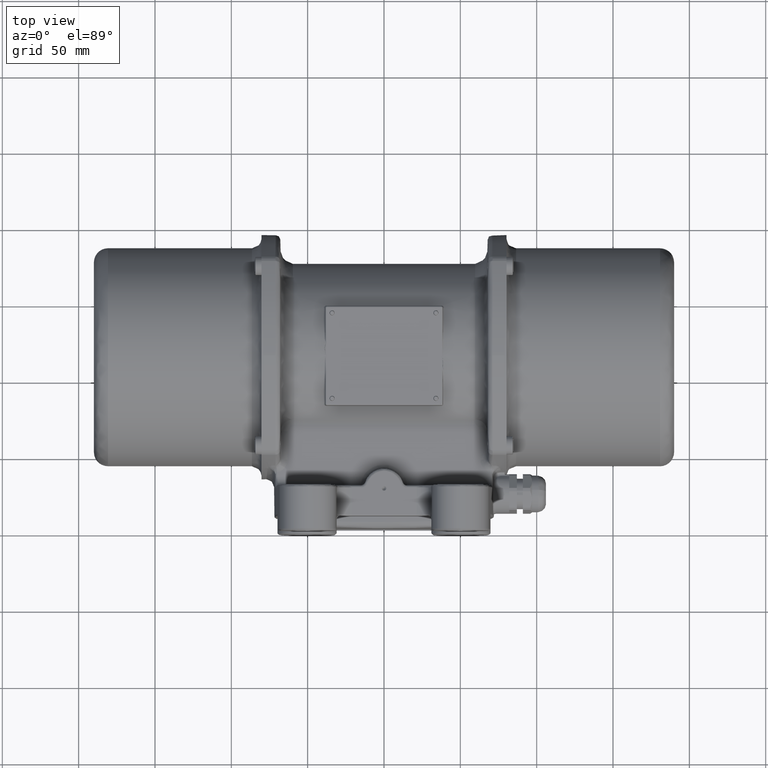
[diagram: clean part render]
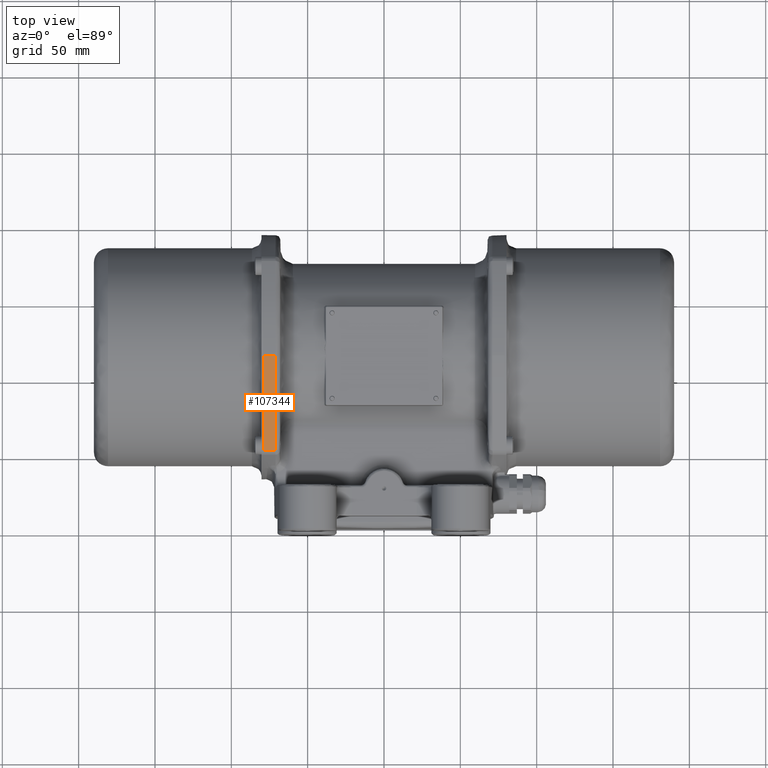
[diagram: same view with one face highlighted and labeled with its STEP entity id]
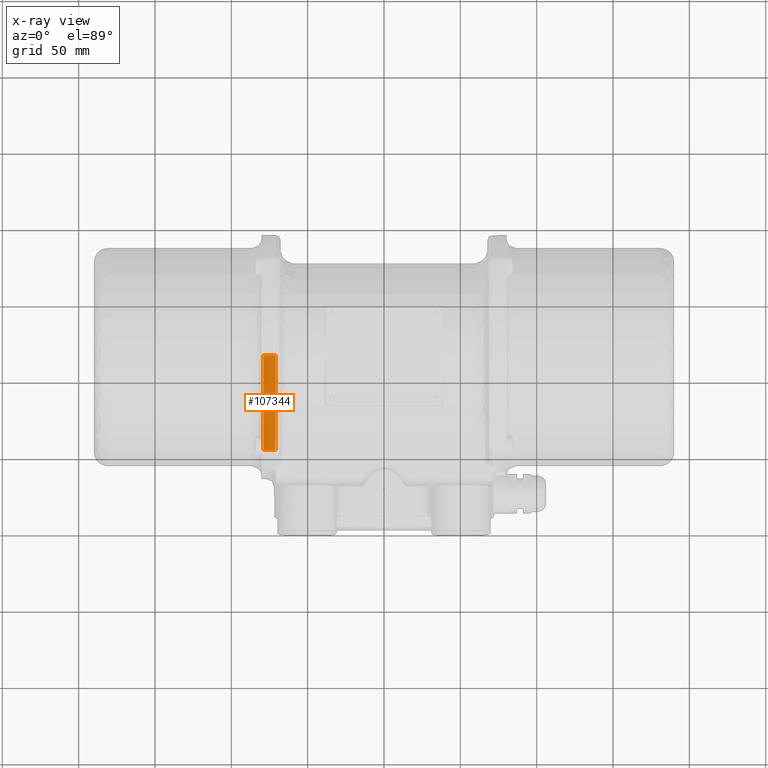
[diagram: x-ray of the same camera — body ghosted, the highlighted face saturated]
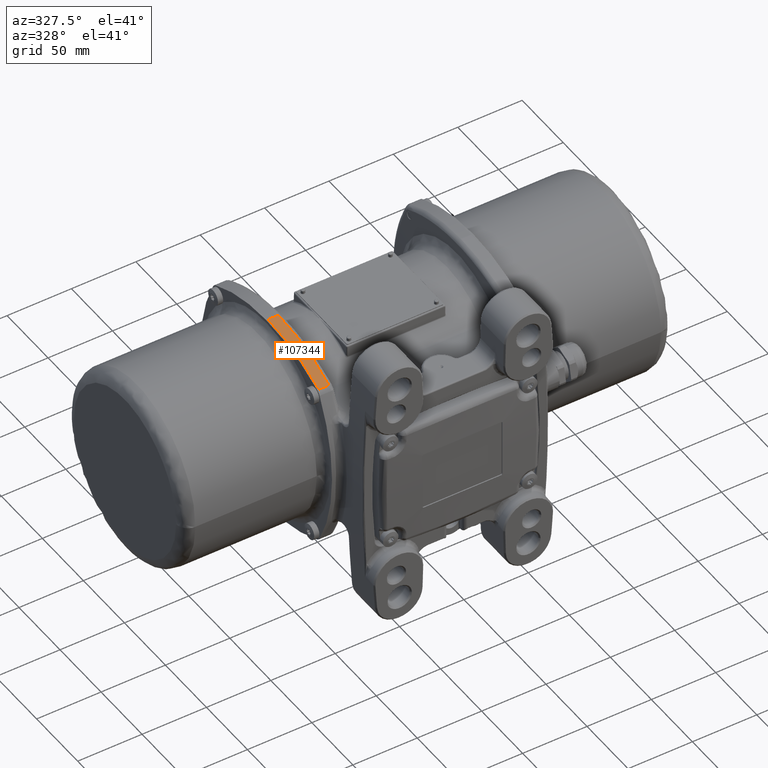
[diagram: same view with one face highlighted and labeled with its STEP entity id]
A machine part, top view. The second image highlights one B-rep face of the part: STEP entity #107344.
The next image is the same camera in x-ray: the body ghosted, the highlighted face saturated — about 0% of this face is hidden behind the body in this view.
A second angle (auxiliary view) of the same face is appended — the face is thin or edge-on in the first view.
In plain terms, the highlighted cylindrical surface (partial cylindrical patch) has radius 134.5 mm, axis along (1, -0, 0).
Its self-contained STEP definition (entity closure, byte-faithful):
#3525 = VERTEX_POINT ( 'NONE', #74245 ) ;
#3760 = CARTESIAN_POINT ( 'NONE',  ( -70.95596132120161300, 85.79743960533078000, 76.79844603611414300 ) ) ;
#4215 = DIRECTION ( 'NONE',  ( 1.031805784967617600E-016, 1.031805784967617600E-016, 1.000000000000000000 ) ) ;
#9108 = DIRECTION ( 'NONE',  ( 1.031805784967617600E-016, 1.031805784967617600E-016, 1.000000000000000000 ) ) ;
#10567 = DIRECTION ( 'NONE',  ( 1.000000000000000000, -8.326672684688669100E-017, 2.810135053042584500E-017 ) ) ;
#13875 = CARTESIAN_POINT ( 'NONE',  ( -71.15591171404700800, 53.08854716773510100, 64.90360969500959200 ) ) ;
#14166 = CARTESIAN_POINT ( 'NONE',  ( -70.96122672418034900, 84.48391189990107400, 76.49934134550196100 ) ) ;
#15195 = DIRECTION ( 'NONE',  ( 1.000000000000000000, -8.326672684688669100E-017, 2.810135053042584500E-017 ) ) ;
#15629 = CARTESIAN_POINT ( 'NONE',  ( -70.94145714159952800, 89.76626286524410100, 77.61860839076905400 ) ) ;
#18005 = ORIENTED_EDGE ( 'NONE', *, *, #61690, .F. ) ;
#19363 = LINE ( 'NONE', #50867, #29986 ) ;
#20725 = EDGE_CURVE ( 'NONE', #53998, #3525, #134929, .T. ) ;
#29986 = VECTOR ( 'NONE', #87237, 1000.000000000000000 ) ;
#46825 = EDGE_CURVE ( 'NONE', #124789, #109516, #73787, .T. ) ;
#48625 = CARTESIAN_POINT ( 'NONE',  ( -70.89875218139251000, 115.0000000000000000, 80.00000000687029500 ) ) ;
#50704 = ORIENTED_EDGE ( 'NONE', *, *, #20725, .T. ) ;
#50867 = CARTESIAN_POINT ( 'NONE',  ( -90.00000000000000000, 53.08854716773510100, 64.90360969500969200 ) ) ;
#51812 = FACE_OUTER_BOUND ( 'NONE', #114757, .T. ) ;
#52468 = CARTESIAN_POINT ( 'NONE',  ( -70.89875218139251000, 115.0000000000000000, 80.00000000687029500 ) ) ;
#53998 = VERTEX_POINT ( 'NONE', #114263 ) ;
#60419 = CARTESIAN_POINT ( 'NONE',  ( -70.92155368639464500, 96.40308679843627700, 78.73502348362639200 ) ) ;
#61690 = EDGE_CURVE ( 'NONE', #109516, #3525, #19363, .T. ) ;
#66466 = LINE ( 'NONE', #71751, #71649 ) ;
#67435 = ORIENTED_EDGE ( 'NONE', *, *, #127269, .F. ) ;
#71649 = VECTOR ( 'NONE', #15195, 1000.000000000000000 ) ;
#71751 = CARTESIAN_POINT ( 'NONE',  ( -89.99999999999998600, 115.0000000000000100, 80.00000000000001400 ) ) ;
#73787 = B_SPLINE_CURVE_WITH_KNOTS ( 'NONE', 3,
 ( #48625, #127761, #116520, #60419, #81569, #15629, #138596, #3760, #14166, #104222, #82540, #125845, #93909, #126808 ),
 .UNSPECIFIED., .F., .F.,
 ( 4, 2, 2, 2, 2, 2, 4 ),
 ( 0.0000000000000000000, 0.2495765150811067900, 0.3746470959009225400, 0.4371823863108313400, 0.4997176767207385200, 0.7498588383603684800, 1.000000000000000000 ),
 .UNSPECIFIED. ) ;
#74245 = CARTESIAN_POINT ( 'NONE',  ( -79.00000000000000000, 53.08854716773510100, 64.90360969500969200 ) ) ;
#78019 = CARTESIAN_POINT ( 'NONE',  ( -79.00000000000000000, 115.0000000000000000, -54.50000000000000000 ) ) ;
#79134 = AXIS2_PLACEMENT_3D ( 'NONE', #95322, #118390, #4215 ) ;
#81569 = CARTESIAN_POINT ( 'NONE',  ( -70.92867178036864600, 93.74703827548172800, 78.33762384781499600 ) ) ;
#82540 = CARTESIAN_POINT ( 'NONE',  ( -71.01642895897491300, 72.82934880713610000, 73.33022565195972200 ) ) ;
#86999 = CYLINDRICAL_SURFACE ( 'NONE', #79134, 134.5000000000000000 ) ;
#87237 = DIRECTION ( 'NONE',  ( -1.000000000000000000, 8.326672684688669100E-017, -2.810135053042584500E-017 ) ) ;
#93909 = CARTESIAN_POINT ( 'NONE',  ( -71.11590479829791900, 57.88959588608693000, 67.39298084577205800 ) ) ;
#95322 = CARTESIAN_POINT ( 'NONE',  ( -90.00000000000000000, 115.0000000000000000, -54.50000000000000000 ) ) ;
#100066 = AXIS2_PLACEMENT_3D ( 'NONE', #78019, #10567, #9108 ) ;
#104222 = CARTESIAN_POINT ( 'NONE',  ( -70.98911848792842200, 77.94978262709911100, 74.90817766599731400 ) ) ;
#107344 = ADVANCED_FACE ( 'NONE', ( #51812 ), #86999, .T. ) ;
#109516 = VERTEX_POINT ( 'NONE', #13875 ) ;
#114263 = CARTESIAN_POINT ( 'NONE',  ( -79.00000000000000000, 115.0000000000000100, 80.00000000000001400 ) ) ;
#114757 = EDGE_LOOP ( 'NONE', ( #67435, #50704, #18005, #118783 ) ) ;
#116520 = CARTESIAN_POINT ( 'NONE',  ( -70.90447848165300100, 104.3656827180526800, 79.68531468127115100 ) ) ;
#118390 = DIRECTION ( 'NONE',  ( 1.000000000000000000, -8.326672684688669100E-017, 2.810135053042584500E-017 ) ) ;
#118783 = ORIENTED_EDGE ( 'NONE', *, *, #46825, .F. ) ;
#124789 = VERTEX_POINT ( 'NONE', #52468 ) ;
#125845 = CARTESIAN_POINT ( 'NONE',  ( -71.07982323715270900, 62.79928969360123900, 69.57262492495493700 ) ) ;
#126808 = CARTESIAN_POINT ( 'NONE',  ( -71.15591171404700800, 53.08854716773510100, 64.90360969500959200 ) ) ;
#127269 = EDGE_CURVE ( 'NONE', #53998, #124789, #66466, .T. ) ;
#127761 = CARTESIAN_POINT ( 'NONE',  ( -70.89875219800130400, 109.6786202292617200, 80.00000506697240600 ) ) ;
#134929 = CIRCLE ( 'NONE', #100066, 134.5000000000000000 ) ;
#138596 = CARTESIAN_POINT ( 'NONE',  ( -70.94607786581562400, 88.43803684277598600, 77.35800536310624400 ) ) ;